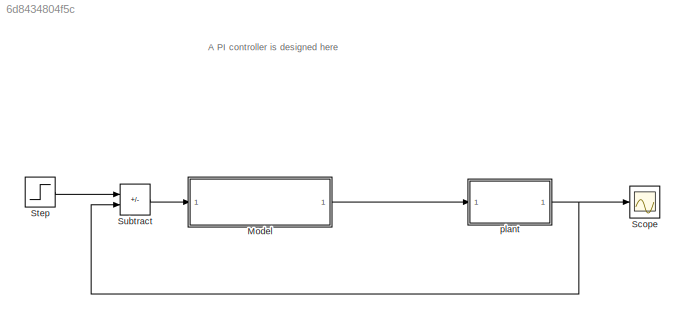
MODEL slx_6d8434804f5c
KIND model
CONFIG AbsTol = auto
CONFIG EnableMultiTasking = off
CONFIG FixedStep = auto
CONFIG MaxStep = auto
CONFIG MinStep = auto
CONFIG RelTol = 1e-3
CONFIG SampleTimeConstraint = Unconstrained
CONFIG SolverName = ode45
CONFIG StartTime = 0.0
CONFIG StopTime = 10
WORKSPACE source: mxarray member
WORKSPACE Ki: Simulink.Parameter (value not decoded)
WORKSPACE Kp: Simulink.Parameter (value not decoded)
WORKSPACE b: Simulink.Parameter (value not decoded)
WORKSPACE m: Simulink.Parameter (value not decoded)
WORKSPACE u: Simulink.Parameter (value not decoded)
BLOCK [ModelReference] Model
  ModelNameDialog = PIcontoller.slx
  ModelReferenceVersion = 1.20
  Ports = [1, 1]
BLOCK [Scope] Scope
  Floating = off
  NumInputPorts = 1
  Ports = [1]
  ScopeSpecificationString = Simulink.scopes.TimeScopeBlockCfg('CurrentConfiguration', extmgr.ConfigurationSet(extmgr.Configuration('Core','General UI',true),extmgr.Configuration('Core','Source UI',true),extmgr.Configuration('Sources','WiredSimulink',true),extmgr.Configuration('Visuals','Time Domain',true,'SerializedDisplays',{struct('MinYLimReal','-62.45334','MaxYLimReal','562.08005','YLabelReal','','MinYLimMag','0.00000','M...<+1365ch>
BLOCK [Step] Step
  After = 500
  SampleTime = 0
BLOCK [Sum] Subtract
  IconShape = rectangular
  Inputs = +-
  Ports = [2, 1]
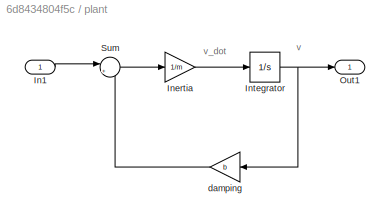
BLOCK [SubSystem] plant 
  Ports = [1, 1]
  RequestExecContextInheritance = off
BLOCK [Inport] plant /In1
BLOCK [Gain] plant /Inertia
  Gain = 1/m
BLOCK [Integrator] plant /Integrator
  Ports = [1, 1]
BLOCK [Outport] plant /Out1
BLOCK [Sum] plant /Sum
  Inputs = |+-
  Ports = [2, 1]
BLOCK [Gain] plant /damping
  Gain = b
ANNOTATION (root): A PI controller is designed here
ANNOTATION plant : v
ANNOTATION plant : v_dot
LINE Model:1 -> plant :1
LINE Step:1 -> Subtract:1
LINE Subtract:1 -> Model:1
LINE plant /In1:1 -> plant /Sum:1
LINE plant /Inertia:1 -> plant /Integrator:1
NET plant /Integrator:1 -> plant /Out1:1, plant /damping:1
LINE plant /Sum:1 -> plant /Inertia:1
LINE plant /damping:1 -> plant /Sum:2
NET plant :1 -> Scope:1, Subtract:2
note: NET lines group one-source signal fan-out (src -> all destinations, sorted); 1:1 wires keep LINE
